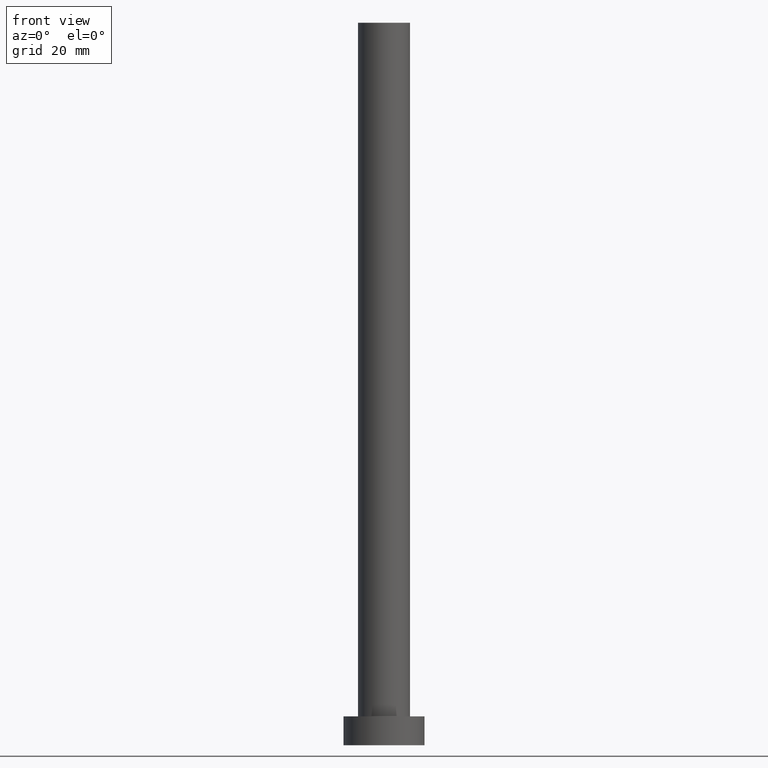
[diagram: clean part render]
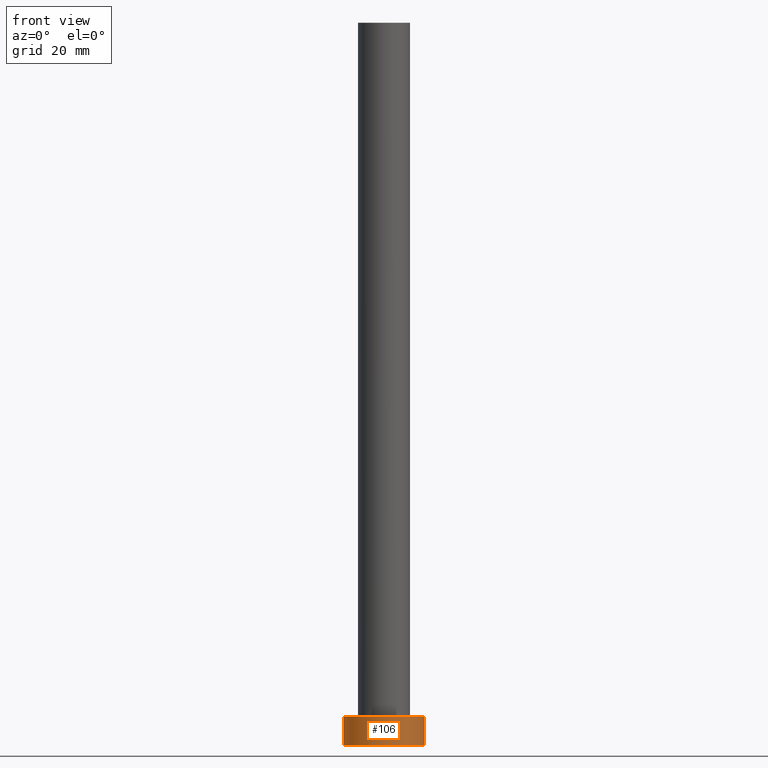
[diagram: same view with one face highlighted and labeled with its STEP entity id]
A machine part, front view. The second image highlights one B-rep face of the part: STEP entity #106.
In plain terms, the highlighted cylindrical surface (partial cylindrical patch) has radius 7 mm, axis along (-0, -0, -1).
Its self-contained STEP definition (entity closure, byte-faithful):
#3 = ORIENTED_EDGE ( 'NONE', *, *, #201, .T. ) ;
#4 = CIRCLE ( 'NONE', #153, 7.000000000000000000 ) ;
#7 = CARTESIAN_POINT ( 'NONE',  ( -7.000000000000000000, 0.000000000000000000, 5.000000000000000000 ) ) ;
#8 = DIRECTION ( 'NONE',  ( 1.000000000000000000, 0.000000000000000000, 0.000000000000000000 ) ) ;
#9 = CARTESIAN_POINT ( 'NONE',  ( -7.000000000000000000, 0.000000000000000000, 0.000000000000000000 ) ) ;
#10 = CYLINDRICAL_SURFACE ( 'NONE', #192, 7.000000000000000000 ) ;
#19 = ORIENTED_EDGE ( 'NONE', *, *, #181, .F. ) ;
#38 = CIRCLE ( 'NONE', #184, 7.000000000000000000 ) ;
#42 = VERTEX_POINT ( 'NONE', #7 ) ;
#68 = DIRECTION ( 'NONE',  ( -1.000000000000000000, 0.000000000000000000, 0.000000000000000000 ) ) ;
#81 = VERTEX_POINT ( 'NONE', #9 ) ;
#82 = EDGE_LOOP ( 'NONE', ( #238, #19, #239, #3 ) ) ;
#95 = VECTOR ( 'NONE', #135, 1000.000000000000000 ) ;
#106 = ADVANCED_FACE ( 'NONE', ( #170 ), #10, .T. ) ;
#115 = LINE ( 'NONE', #150, #122 ) ;
#122 = VECTOR ( 'NONE', #246, 1000.000000000000000 ) ;
#129 = CARTESIAN_POINT ( 'NONE',  ( 0.000000000000000000, 0.000000000000000000, 5.000000000000000000 ) ) ;
#130 = CARTESIAN_POINT ( 'NONE',  ( 7.000000000000000000, 8.572527594031473190E-16, 0.000000000000000000 ) ) ;
#135 = DIRECTION ( 'NONE',  ( -0.000000000000000000, -0.000000000000000000, -1.000000000000000000 ) ) ;
#148 = LINE ( 'NONE', #210, #95 ) ;
#150 = CARTESIAN_POINT ( 'NONE',  ( 7.000000000000000000, 8.572527594031473190E-16, 5.000000000000000000 ) ) ;
#153 = AXIS2_PLACEMENT_3D ( 'NONE', #242, #209, #169 ) ;
#156 = EDGE_CURVE ( 'NONE', #177, #164, #115, .T. ) ;
#164 = VERTEX_POINT ( 'NONE', #130 ) ;
#169 = DIRECTION ( 'NONE',  ( 1.000000000000000000, 0.000000000000000000, 0.000000000000000000 ) ) ;
#170 = FACE_OUTER_BOUND ( 'NONE', #82, .T. ) ;
#177 = VERTEX_POINT ( 'NONE', #190 ) ;
#181 = EDGE_CURVE ( 'NONE', #42, #177, #4, .T. ) ;
#184 = AXIS2_PLACEMENT_3D ( 'NONE', #189, #228, #8 ) ;
#189 = CARTESIAN_POINT ( 'NONE',  ( 0.000000000000000000, 0.000000000000000000, 0.000000000000000000 ) ) ;
#190 = CARTESIAN_POINT ( 'NONE',  ( 7.000000000000000000, 8.572527594031473190E-16, 5.000000000000000000 ) ) ;
#192 = AXIS2_PLACEMENT_3D ( 'NONE', #129, #245, #68 ) ;
#201 = EDGE_CURVE ( 'NONE', #81, #164, #38, .T. ) ;
#209 = DIRECTION ( 'NONE',  ( 0.000000000000000000, 0.000000000000000000, 1.000000000000000000 ) ) ;
#210 = CARTESIAN_POINT ( 'NONE',  ( -7.000000000000000000, 0.000000000000000000, 5.000000000000000000 ) ) ;
#228 = DIRECTION ( 'NONE',  ( 0.000000000000000000, 0.000000000000000000, 1.000000000000000000 ) ) ;
#238 = ORIENTED_EDGE ( 'NONE', *, *, #156, .F. ) ;
#239 = ORIENTED_EDGE ( 'NONE', *, *, #244, .T. ) ;
#242 = CARTESIAN_POINT ( 'NONE',  ( 0.000000000000000000, 0.000000000000000000, 5.000000000000000000 ) ) ;
#244 = EDGE_CURVE ( 'NONE', #42, #81, #148, .T. ) ;
#245 = DIRECTION ( 'NONE',  ( -0.000000000000000000, -0.000000000000000000, -1.000000000000000000 ) ) ;
#246 = DIRECTION ( 'NONE',  ( -0.000000000000000000, -0.000000000000000000, -1.000000000000000000 ) ) ;